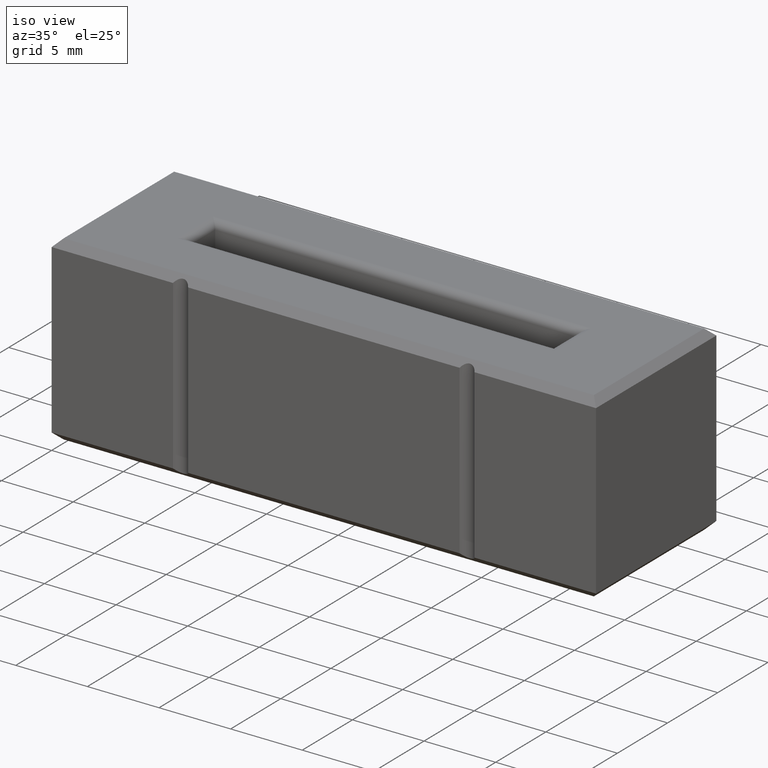
[diagram: clean part render]
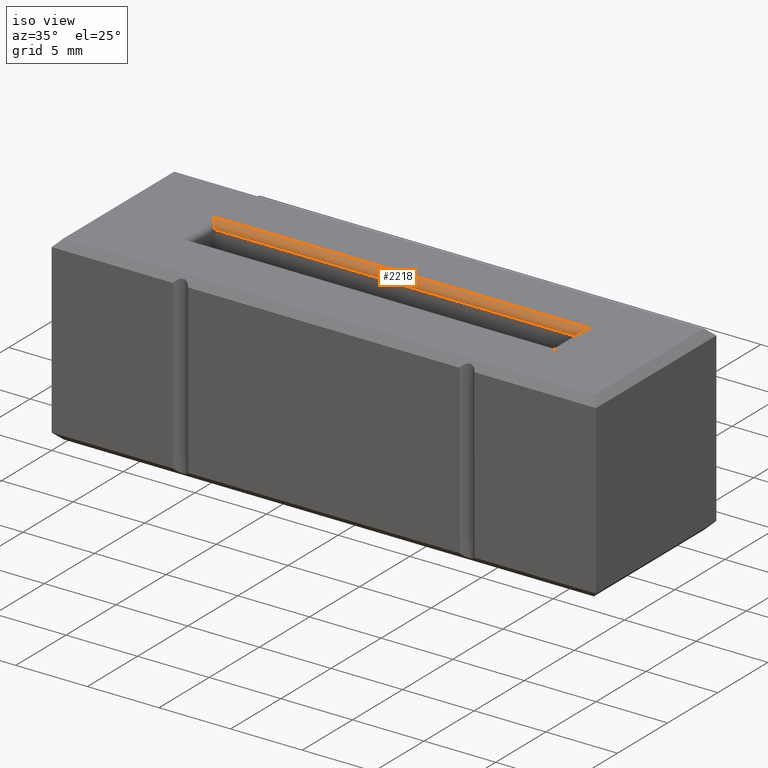
[diagram: same view with one face highlighted and labeled with its STEP entity id]
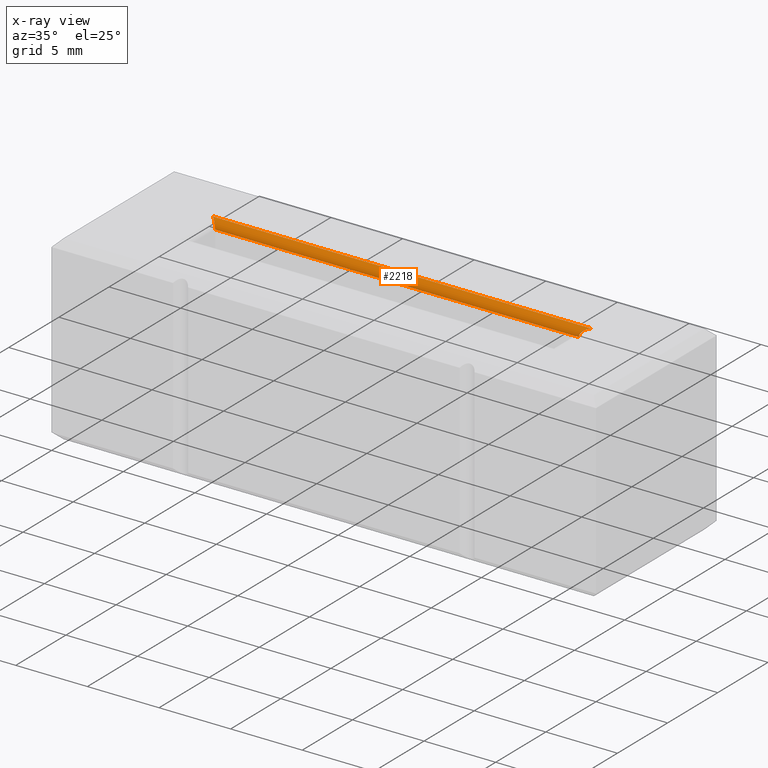
[diagram: x-ray of the same camera — body ghosted, the highlighted face saturated]
A machine part, iso view. The second image highlights one B-rep face of the part: STEP entity #2218.
The next image is the same camera in x-ray: the body ghosted, the highlighted face saturated — about 0% of this face is hidden behind the body in this view.
In plain terms, the highlighted cylindrical surface (edge-blend (fillet) strip) has radius 0.5 mm, axis along (1, -0, 0).
Its self-contained STEP definition (entity closure, byte-faithful):
#188 = CARTESIAN_POINT ( 'NONE',  ( 31.70000000000000639, 7.300000000000006040, 12.19999999999999929 ) ) ;
#289 = CARTESIAN_POINT ( 'NONE',  ( 31.90710678118654897, 7.507106781186554834, 12.70000000000000107 ) ) ;
#491 = VECTOR ( 'NONE', #2149, 1000.000000000000000 ) ;
#541 = EDGE_CURVE ( 'NONE', #3083, #2575, #3114, .T. ) ;
#585 = CYLINDRICAL_SURFACE ( 'NONE', #1121, 0.5000000000000004441 ) ;
#672 = ORIENTED_EDGE ( 'NONE', *, *, #3182, .T. ) ;
#675 = EDGE_CURVE ( 'NONE', #1800, #1068, #1509, .T. ) ;
#890 =( BOUNDED_CURVE ( )  B_SPLINE_CURVE ( 3, ( #3289, #289, #1004, #1777 ),
 .UNSPECIFIED., .F., .T. ) 
 B_SPLINE_CURVE_WITH_KNOTS ( ( 4, 4 ),
 ( 4.712388980384689674, 6.283185307179586232 ),
 .UNSPECIFIED. ) 
 CURVE ( )  GEOMETRIC_REPRESENTATION_ITEM ( )  RATIONAL_B_SPLINE_CURVE ( ( 1.000000000000000000, 0.8047378541243649375, 0.8047378541243649375, 1.000000000000000000 ) ) 
 REPRESENTATION_ITEM ( '' )  );
#1004 = CARTESIAN_POINT ( 'NONE',  ( 31.70000000000000639, 7.300000000000006928, 12.49289321881345138 ) ) ;
#1068 = VERTEX_POINT ( 'NONE', #1893 ) ;
#1111 = CARTESIAN_POINT ( 'NONE',  ( 6.299999999999993605, 7.800000000000010481, 12.19999999999999929 ) ) ;
#1121 = AXIS2_PLACEMENT_3D ( 'NONE', #1111, #2179, #2444 ) ;
#1296 = CARTESIAN_POINT ( 'NONE',  ( 31.70000000000000639, 7.800000000000006928, 12.69999999999999929 ) ) ;
#1386 = CARTESIAN_POINT ( 'NONE',  ( 6.299999999999993605, 7.300000000000009592, 12.19999999999999929 ) ) ;
#1410 = FACE_OUTER_BOUND ( 'NONE', #2879, .T. ) ;
#1458 = VECTOR ( 'NONE', #2071, 1000.000000000000000 ) ;
#1509 = LINE ( 'NONE', #1296, #1458 ) ;
#1537 = ORIENTED_EDGE ( 'NONE', *, *, #541, .F. ) ;
#1579 = CARTESIAN_POINT ( 'NONE',  ( 6.299999999999993605, 7.300000000000009592, 12.19999999999999929 ) ) ;
#1581 = CARTESIAN_POINT ( 'NONE',  ( 5.799999999999993605, 7.800000000000010481, 12.69999999999999929 ) ) ;
#1777 = CARTESIAN_POINT ( 'NONE',  ( 31.70000000000000639, 7.300000000000006040, 12.19999999999999929 ) ) ;
#1800 = VERTEX_POINT ( 'NONE', #2786 ) ;
#1893 = CARTESIAN_POINT ( 'NONE',  ( 32.20000000000000284, 7.800000000000006928, 12.69999999999999929 ) ) ;
#2017 = ORIENTED_EDGE ( 'NONE', *, *, #3229, .F. ) ;
#2071 = DIRECTION ( 'NONE',  ( 1.000000000000000000, -1.365923996832130870E-16, -0.000000000000000000 ) ) ;
#2149 = DIRECTION ( 'NONE',  ( -1.000000000000000000, 1.365923996832130870E-16, 0.000000000000000000 ) ) ;
#2179 = DIRECTION ( 'NONE',  ( 1.000000000000000000, -1.365923996832130870E-16, 0.000000000000000000 ) ) ;
#2218 = ADVANCED_FACE ( 'NONE', ( #1410 ), #585, .T. ) ;
#2285 =( BOUNDED_CURVE ( )  B_SPLINE_CURVE ( 3, ( #1581, #3064, #3081, #2531 ),
 .UNSPECIFIED., .F., .T. ) 
 B_SPLINE_CURVE_WITH_KNOTS ( ( 4, 4 ),
 ( 1.570796326794896558, 3.141592653589793116 ),
 .UNSPECIFIED. ) 
 CURVE ( )  GEOMETRIC_REPRESENTATION_ITEM ( )  RATIONAL_B_SPLINE_CURVE ( ( 1.000000000000000000, 0.8047378541243649375, 0.8047378541243649375, 1.000000000000000000 ) ) 
 REPRESENTATION_ITEM ( '' )  );
#2444 = DIRECTION ( 'NONE',  ( 0.000000000000000000, 1.000000000000000000, 0.000000000000000000 ) ) ;
#2531 = CARTESIAN_POINT ( 'NONE',  ( 6.299999999999993605, 7.300000000000009592, 12.19999999999999929 ) ) ;
#2575 = VERTEX_POINT ( 'NONE', #1386 ) ;
#2649 = ORIENTED_EDGE ( 'NONE', *, *, #675, .F. ) ;
#2786 = CARTESIAN_POINT ( 'NONE',  ( 5.799999999999993605, 7.800000000000010481, 12.69999999999999929 ) ) ;
#2879 = EDGE_LOOP ( 'NONE', ( #672, #1537, #2017, #2649 ) ) ;
#3064 = CARTESIAN_POINT ( 'NONE',  ( 6.092893218813444811, 7.507106781186556610, 12.70000000000000107 ) ) ;
#3081 = CARTESIAN_POINT ( 'NONE',  ( 6.299999999999993605, 7.300000000000008704, 12.49289321881345138 ) ) ;
#3083 = VERTEX_POINT ( 'NONE', #188 ) ;
#3114 = LINE ( 'NONE', #1579, #491 ) ;
#3182 = EDGE_CURVE ( 'NONE', #1800, #2575, #2285, .T. ) ;
#3229 = EDGE_CURVE ( 'NONE', #1068, #3083, #890, .T. ) ;
#3289 = CARTESIAN_POINT ( 'NONE',  ( 32.20000000000000284, 7.800000000000006928, 12.69999999999999929 ) ) ;